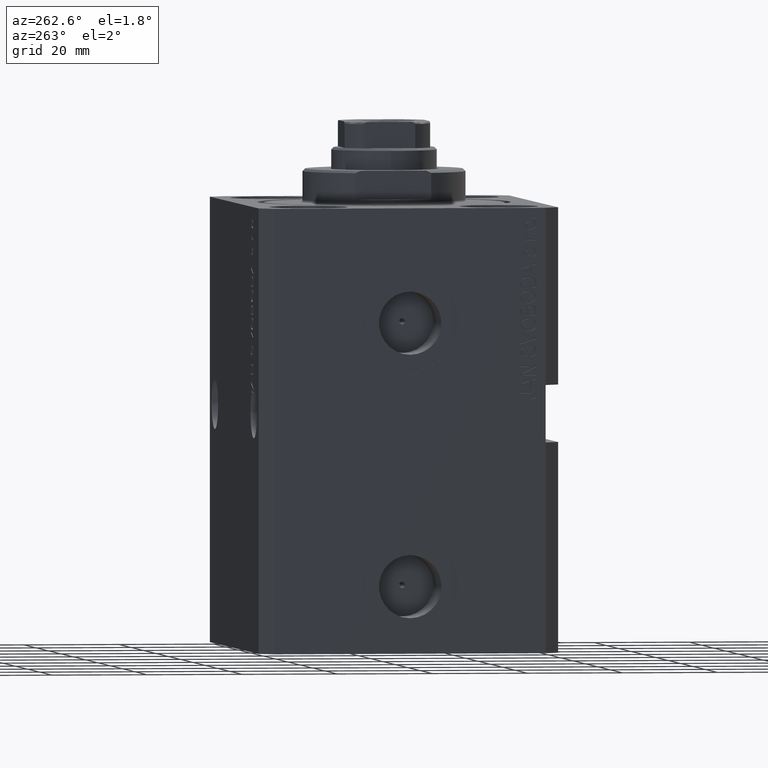
[diagram: clean part render]
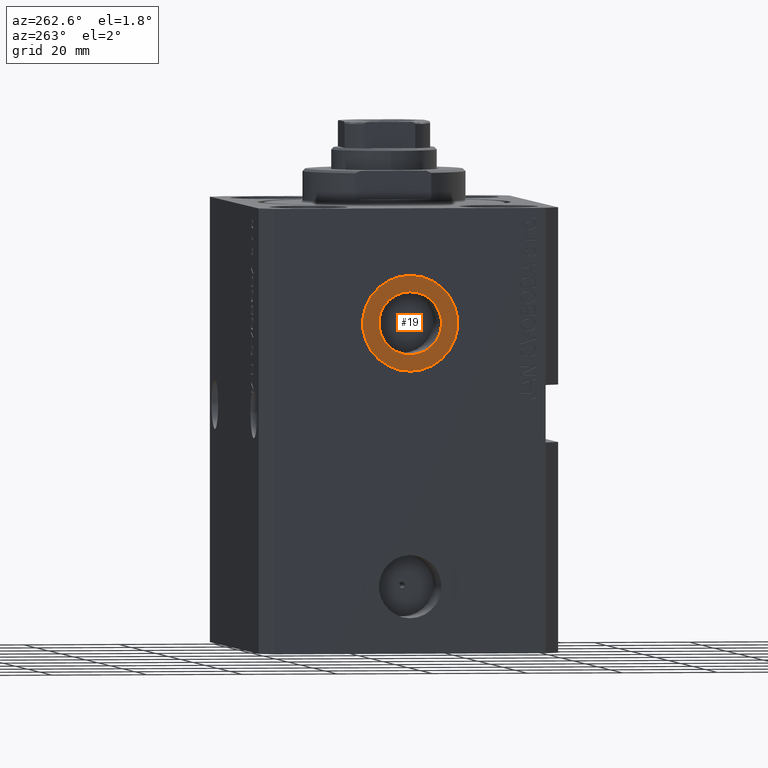
[diagram: same view with one face highlighted and labeled with its STEP entity id]
A machine part, auxiliary view. The second image highlights one B-rep face of the part: STEP entity #19.
In plain terms, the highlighted planar face has unit normal (-1, 0, 0).
Its self-contained STEP definition (entity closure, byte-faithful):
#19 = ADVANCED_FACE ( 'NONE', ( #32655, #2039 ), #25831, .T. ) ;
#624 = ORIENTED_EDGE ( 'NONE', *, *, #32207, .T. ) ;
#625 = EDGE_CURVE ( 'NONE', #23319, #28226, #10708, .T. ) ;
#1742 = ORIENTED_EDGE ( 'NONE', *, *, #24238, .T. ) ;
#2039 = FACE_OUTER_BOUND ( 'NONE', #11153, .T. ) ;
#2101 = CARTESIAN_POINT ( 'NONE',  ( -42.39999999999999858, -3.469446951953614189E-15, -24.00000000000000000 ) ) ;
#2664 = DIRECTION ( 'NONE',  ( 0.000000000000000000, 0.000000000000000000, 1.000000000000000000 ) ) ;
#5289 = ORIENTED_EDGE ( 'NONE', *, *, #625, .F. ) ;
#6999 = DIRECTION ( 'NONE',  ( 0.000000000000000000, 0.000000000000000000, 1.000000000000000000 ) ) ;
#7987 = CIRCLE ( 'NONE', #8700, 10.00000000000000000 ) ;
#8700 = AXIS2_PLACEMENT_3D ( 'NONE', #23287, #11951, #2664 ) ;
#9191 = AXIS2_PLACEMENT_3D ( 'NONE', #42878, #18624, #11819 ) ;
#10708 = CIRCLE ( 'NONE', #26619, 6.579999999999999183 ) ;
#11058 = DIRECTION ( 'NONE',  ( -1.000000000000000000, 0.000000000000000000, 0.000000000000000000 ) ) ;
#11153 = EDGE_LOOP ( 'NONE', ( #624, #1742 ) ) ;
#11819 = DIRECTION ( 'NONE',  ( 0.000000000000000000, 0.000000000000000000, 1.000000000000000000 ) ) ;
#11951 = DIRECTION ( 'NONE',  ( -1.000000000000000000, 0.000000000000000000, 0.000000000000000000 ) ) ;
#16054 = CARTESIAN_POINT ( 'NONE',  ( -42.39999999999999858, -3.469446951953614189E-15, -14.00000000000000000 ) ) ;
#18590 = DIRECTION ( 'NONE',  ( -1.000000000000000000, 0.000000000000000000, 0.000000000000000000 ) ) ;
#18624 = DIRECTION ( 'NONE',  ( -1.000000000000000000, 0.000000000000000000, 0.000000000000000000 ) ) ;
#20037 = ORIENTED_EDGE ( 'NONE', *, *, #39559, .F. ) ;
#20410 = AXIS2_PLACEMENT_3D ( 'NONE', #28294, #11058, #6999 ) ;
#22736 = VERTEX_POINT ( 'NONE', #38245 ) ;
#23287 = CARTESIAN_POINT ( 'NONE',  ( -42.39999999999999858, -3.469446951953614189E-15, -24.00000000000000000 ) ) ;
#23319 = VERTEX_POINT ( 'NONE', #26350 ) ;
#24238 = EDGE_CURVE ( 'NONE', #22736, #41477, #41773, .T. ) ;
#25785 = EDGE_LOOP ( 'NONE', ( #5289, #20037 ) ) ;
#25831 = PLANE ( 'NONE',  #40341 ) ;
#26056 = CARTESIAN_POINT ( 'NONE',  ( -42.39999999999999858, -3.469446951953614189E-15, -24.00000000000000000 ) ) ;
#26350 = CARTESIAN_POINT ( 'NONE',  ( -42.39999999999999858, -3.469446951953614189E-15, -17.42000000000000171 ) ) ;
#26619 = AXIS2_PLACEMENT_3D ( 'NONE', #2101, #36565, #44037 ) ;
#28226 = VERTEX_POINT ( 'NONE', #38544 ) ;
#28294 = CARTESIAN_POINT ( 'NONE',  ( -42.39999999999999858, -3.469446951953614189E-15, -24.00000000000000000 ) ) ;
#32207 = EDGE_CURVE ( 'NONE', #41477, #22736, #7987, .T. ) ;
#32435 = DIRECTION ( 'NONE',  ( 0.000000000000000000, 0.000000000000000000, 1.000000000000000000 ) ) ;
#32655 = FACE_BOUND ( 'NONE', #25785, .T. ) ;
#36565 = DIRECTION ( 'NONE',  ( -1.000000000000000000, 0.000000000000000000, 0.000000000000000000 ) ) ;
#38245 = CARTESIAN_POINT ( 'NONE',  ( -42.39999999999999858, -2.244800152806261524E-15, -34.00000000000000000 ) ) ;
#38544 = CARTESIAN_POINT ( 'NONE',  ( -42.39999999999999858, -2.663629358114655936E-15, -30.57999999999999829 ) ) ;
#39559 = EDGE_CURVE ( 'NONE', #28226, #23319, #39943, .T. ) ;
#39943 = CIRCLE ( 'NONE', #20410, 6.579999999999999183 ) ;
#40341 = AXIS2_PLACEMENT_3D ( 'NONE', #26056, #18590, #32435 ) ;
#41477 = VERTEX_POINT ( 'NONE', #16054 ) ;
#41773 = CIRCLE ( 'NONE', #9191, 10.00000000000000000 ) ;
#42878 = CARTESIAN_POINT ( 'NONE',  ( -42.39999999999999858, -3.469446951953614189E-15, -24.00000000000000000 ) ) ;
#44037 = DIRECTION ( 'NONE',  ( 0.000000000000000000, 0.000000000000000000, 1.000000000000000000 ) ) ;